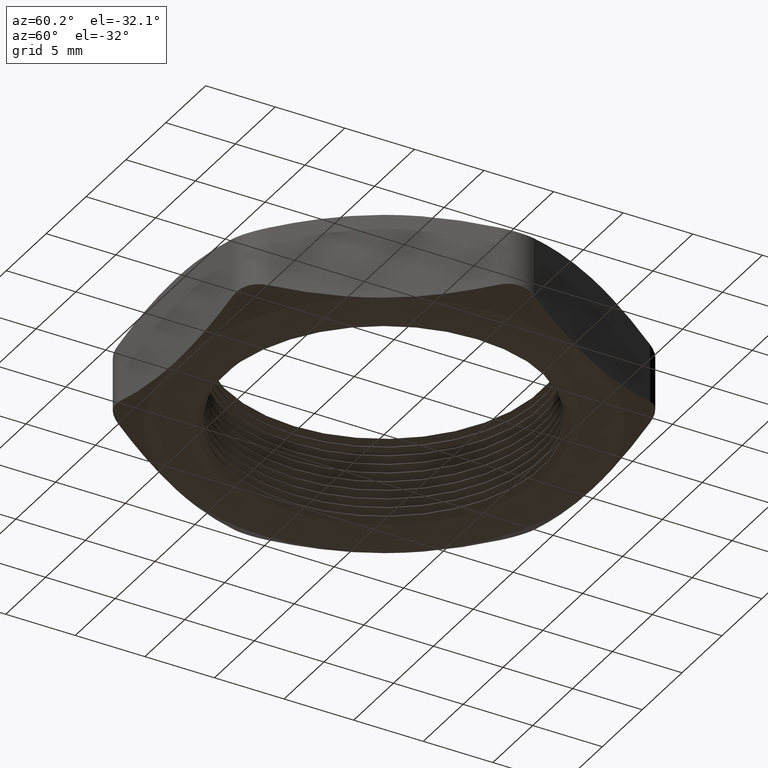
[diagram: clean part render]
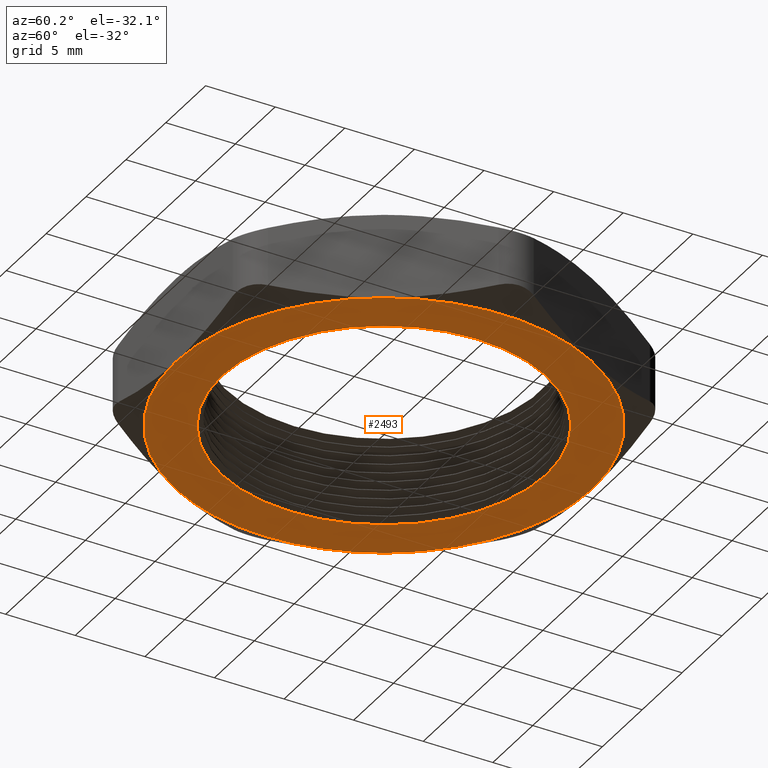
[diagram: same view with one face highlighted and labeled with its STEP entity id]
A machine part, auxiliary view. The second image highlights one B-rep face of the part: STEP entity #2493.
In plain terms, the highlighted planar face has unit normal (0, 0, -1).
Its self-contained STEP definition (entity closure, byte-faithful):
#737 = ORIENTED_EDGE ( 'NONE', *, *, #860, .T. ) ;
#739 = EDGE_CURVE ( 'NONE', #862, #861, #1611, .T. ) ;
#744 = VERTEX_POINT ( 'NONE', #1651 ) ;
#745 = ORIENTED_EDGE ( 'NONE', *, *, #2518, .T. ) ;
#746 = EDGE_CURVE ( 'NONE', #2517, #744, #1647, .T. ) ;
#747 = ORIENTED_EDGE ( 'NONE', *, *, #746, .T. ) ;
#748 = ORIENTED_EDGE ( 'NONE', *, *, #739, .T. ) ;
#750 = EDGE_LOOP ( 'NONE', ( #748, #737 ) ) ;
#751 = EDGE_CURVE ( 'NONE', #756, #2487, #1642, .T. ) ;
#753 = ORIENTED_EDGE ( 'NONE', *, *, #755, .T. ) ;
#754 = ORIENTED_EDGE ( 'NONE', *, *, #751, .T. ) ;
#755 = EDGE_CURVE ( 'NONE', #2514, #756, #1636, .T. ) ;
#756 = VERTEX_POINT ( 'NONE', #1637 ) ;
#860 = EDGE_CURVE ( 'NONE', #861, #862, #1822, .T. ) ;
#861 = VERTEX_POINT ( 'NONE', #1817 ) ;
#862 = VERTEX_POINT ( 'NONE', #1816 ) ;
#924 = EDGE_CURVE ( 'NONE', #925, #926, #1983, .T. ) ;
#925 = VERTEX_POINT ( 'NONE', #1978 ) ;
#926 = VERTEX_POINT ( 'NONE', #1977 ) ;
#1603 = DIRECTION ( 'NONE',  ( -1.000000000000000000, 0.0000000000000000000, 0.0000000000000000000 ) ) ;
#1604 = DIRECTION ( 'NONE',  ( 0.0000000000000000000, 0.0000000000000000000, 1.000000000000000000 ) ) ;
#1605 = CARTESIAN_POINT ( 'NONE',  ( 0.0000000000000000000, 0.0000000000000000000, 0.0000000000000000000 ) ) ;
#1606 = AXIS2_PLACEMENT_3D ( 'NONE', #1605, #1604, #1603 ) ;
#1611 = CIRCLE ( 'NONE', #1606, 0.4590192378864664800 ) ;
#1632 = DIRECTION ( 'NONE',  ( -1.000000000000000000, 0.0000000000000000000, 0.0000000000000000000 ) ) ;
#1633 = DIRECTION ( 'NONE',  ( 0.0000000000000000000, 0.0000000000000000000, -1.000000000000000000 ) ) ;
#1634 = CARTESIAN_POINT ( 'NONE',  ( 0.0000000000000000000, 0.0000000000000000000, 0.0000000000000000000 ) ) ;
#1635 = AXIS2_PLACEMENT_3D ( 'NONE', #1634, #1633, #1632 ) ;
#1636 = CIRCLE ( 'NONE', #1635, 0.5899999999999999700 ) ;
#1637 = CARTESIAN_POINT ( 'NONE',  ( 5.914624404477005100E-017, -0.5900000000000000800, 0.0000000000000000000 ) ) ;
#1638 = DIRECTION ( 'NONE',  ( -1.000000000000000000, 0.0000000000000000000, 0.0000000000000000000 ) ) ;
#1639 = DIRECTION ( 'NONE',  ( 0.0000000000000000000, 0.0000000000000000000, -1.000000000000000000 ) ) ;
#1640 = CARTESIAN_POINT ( 'NONE',  ( 0.0000000000000000000, 0.0000000000000000000, 0.0000000000000000000 ) ) ;
#1641 = AXIS2_PLACEMENT_3D ( 'NONE', #1640, #1639, #1638 ) ;
#1642 = CIRCLE ( 'NONE', #1641, 0.5899999999999999700 ) ;
#1643 = DIRECTION ( 'NONE',  ( -1.000000000000000000, 0.0000000000000000000, 0.0000000000000000000 ) ) ;
#1644 = DIRECTION ( 'NONE',  ( 0.0000000000000000000, 0.0000000000000000000, -1.000000000000000000 ) ) ;
#1645 = CARTESIAN_POINT ( 'NONE',  ( 0.0000000000000000000, 0.0000000000000000000, 0.0000000000000000000 ) ) ;
#1646 = AXIS2_PLACEMENT_3D ( 'NONE', #1645, #1644, #1643 ) ;
#1647 = CIRCLE ( 'NONE', #1646, 0.5899999999999999700 ) ;
#1651 = CARTESIAN_POINT ( 'NONE',  ( 0.5109549882328189300, 0.2949999999999999800, 0.0000000000000000000 ) ) ;
#1816 = CARTESIAN_POINT ( 'NONE',  ( 0.4590192378864664800, 0.0000000000000000000, 0.0000000000000000000 ) ) ;
#1817 = CARTESIAN_POINT ( 'NONE',  ( -0.4590192378864664800, 5.657986010141190300E-017, 0.0000000000000000000 ) ) ;
#1818 = DIRECTION ( 'NONE',  ( -1.000000000000000000, 0.0000000000000000000, 0.0000000000000000000 ) ) ;
#1819 = DIRECTION ( 'NONE',  ( 0.0000000000000000000, 0.0000000000000000000, 1.000000000000000000 ) ) ;
#1820 = CARTESIAN_POINT ( 'NONE',  ( 0.0000000000000000000, 0.0000000000000000000, 0.0000000000000000000 ) ) ;
#1821 = AXIS2_PLACEMENT_3D ( 'NONE', #1820, #1819, #1818 ) ;
#1822 = CIRCLE ( 'NONE', #1821, 0.4590192378864664800 ) ;
#1977 = CARTESIAN_POINT ( 'NONE',  ( -0.5109549882328188200, 0.2950000000000000400, 0.0000000000000000000 ) ) ;
#1978 = CARTESIAN_POINT ( 'NONE',  ( -0.5899999999999999700, 0.0000000000000000000, 0.0000000000000000000 ) ) ;
#1979 = DIRECTION ( 'NONE',  ( -1.000000000000000000, 0.0000000000000000000, 0.0000000000000000000 ) ) ;
#1980 = DIRECTION ( 'NONE',  ( 0.0000000000000000000, 0.0000000000000000000, -1.000000000000000000 ) ) ;
#1981 = CARTESIAN_POINT ( 'NONE',  ( 0.0000000000000000000, 0.0000000000000000000, 0.0000000000000000000 ) ) ;
#1982 = AXIS2_PLACEMENT_3D ( 'NONE', #1981, #1980, #1979 ) ;
#1983 = CIRCLE ( 'NONE', #1982, 0.5899999999999999700 ) ;
#2272 = DIRECTION ( 'NONE',  ( -1.000000000000000000, 0.0000000000000000000, 0.0000000000000000000 ) ) ;
#2273 = DIRECTION ( 'NONE',  ( 0.0000000000000000000, 0.0000000000000000000, -1.000000000000000000 ) ) ;
#2274 = CARTESIAN_POINT ( 'NONE',  ( 2.731847993664263200E-016, 1.180000000000000400, 0.0000000000000000000 ) ) ;
#2275 = AXIS2_PLACEMENT_3D ( 'NONE', #2274, #2273, #2272 ) ;
#2276 = PLANE ( 'NONE',  #2275 ) ;
#2277 = FACE_BOUND ( 'NONE', #750, .T. ) ;
#2278 = FACE_OUTER_BOUND ( 'NONE', #2491, .T. ) ;
#2279 = DIRECTION ( 'NONE',  ( -1.000000000000000000, 0.0000000000000000000, 0.0000000000000000000 ) ) ;
#2280 = DIRECTION ( 'NONE',  ( 0.0000000000000000000, 0.0000000000000000000, -1.000000000000000000 ) ) ;
#2281 = CARTESIAN_POINT ( 'NONE',  ( 0.0000000000000000000, 0.0000000000000000000, 0.0000000000000000000 ) ) ;
#2282 = AXIS2_PLACEMENT_3D ( 'NONE', #2281, #2280, #2279 ) ;
#2283 = CIRCLE ( 'NONE', #2282, 0.5899999999999999700 ) ;
#2287 = CARTESIAN_POINT ( 'NONE',  ( -0.5109549882328189300, -0.2949999999999997600, 0.0000000000000000000 ) ) ;
#2351 = DIRECTION ( 'NONE',  ( -1.000000000000000000, 0.0000000000000000000, 0.0000000000000000000 ) ) ;
#2352 = DIRECTION ( 'NONE',  ( 0.0000000000000000000, 0.0000000000000000000, -1.000000000000000000 ) ) ;
#2353 = CARTESIAN_POINT ( 'NONE',  ( 0.0000000000000000000, 0.0000000000000000000, 0.0000000000000000000 ) ) ;
#2354 = AXIS2_PLACEMENT_3D ( 'NONE', #2353, #2352, #2351 ) ;
#2355 = CIRCLE ( 'NONE', #2354, 0.5900000000000000800 ) ;
#2356 = DIRECTION ( 'NONE',  ( -1.000000000000000000, 0.0000000000000000000, 0.0000000000000000000 ) ) ;
#2357 = DIRECTION ( 'NONE',  ( 0.0000000000000000000, 0.0000000000000000000, -1.000000000000000000 ) ) ;
#2358 = CARTESIAN_POINT ( 'NONE',  ( 0.0000000000000000000, 0.0000000000000000000, 0.0000000000000000000 ) ) ;
#2359 = AXIS2_PLACEMENT_3D ( 'NONE', #2358, #2357, #2356 ) ;
#2360 = CIRCLE ( 'NONE', #2359, 0.5899999999999999700 ) ;
#2361 = CARTESIAN_POINT ( 'NONE',  ( 0.0000000000000000000, 0.5900000000000000800, 0.0000000000000000000 ) ) ;
#2362 = CARTESIAN_POINT ( 'NONE',  ( 0.5109549882328189300, -0.2950000000000001500, 0.0000000000000000000 ) ) ;
#2487 = VERTEX_POINT ( 'NONE', #2287 ) ;
#2488 = ORIENTED_EDGE ( 'NONE', *, *, #924, .T. ) ;
#2490 = ORIENTED_EDGE ( 'NONE', *, *, #2492, .T. ) ;
#2491 = EDGE_LOOP ( 'NONE', ( #2490, #2488, #2516, #747, #745, #753, #754 ) ) ;
#2492 = EDGE_CURVE ( 'NONE', #2487, #925, #2283, .T. ) ;
#2493 = ADVANCED_FACE ( 'NONE', ( #2278, #2277 ), #2276, .T. ) ;
#2514 = VERTEX_POINT ( 'NONE', #2362 ) ;
#2516 = ORIENTED_EDGE ( 'NONE', *, *, #2519, .T. ) ;
#2517 = VERTEX_POINT ( 'NONE', #2361 ) ;
#2518 = EDGE_CURVE ( 'NONE', #744, #2514, #2360, .T. ) ;
#2519 = EDGE_CURVE ( 'NONE', #926, #2517, #2355, .T. ) ;